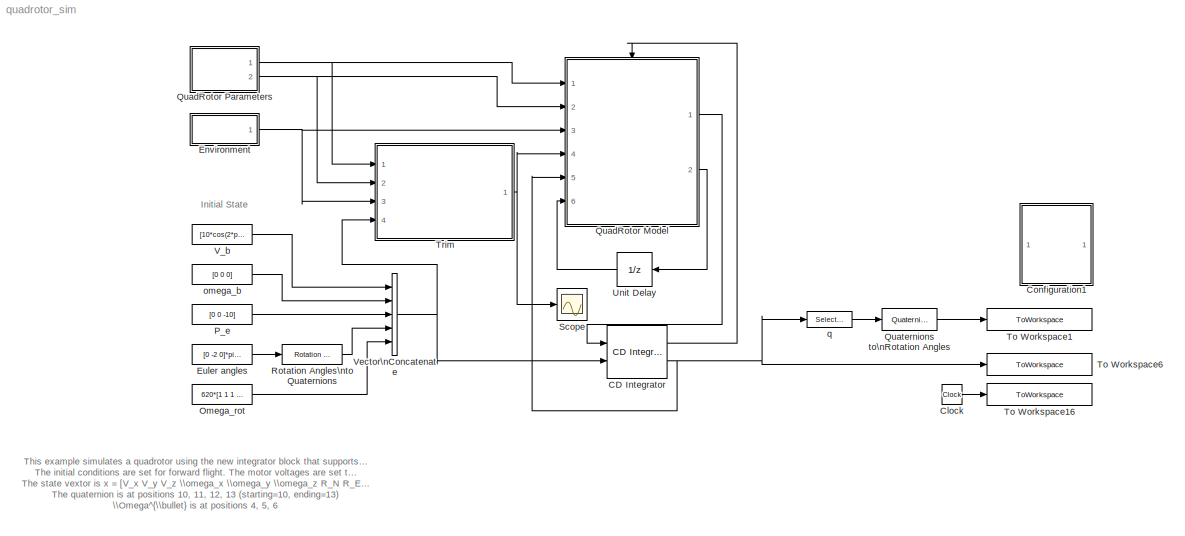
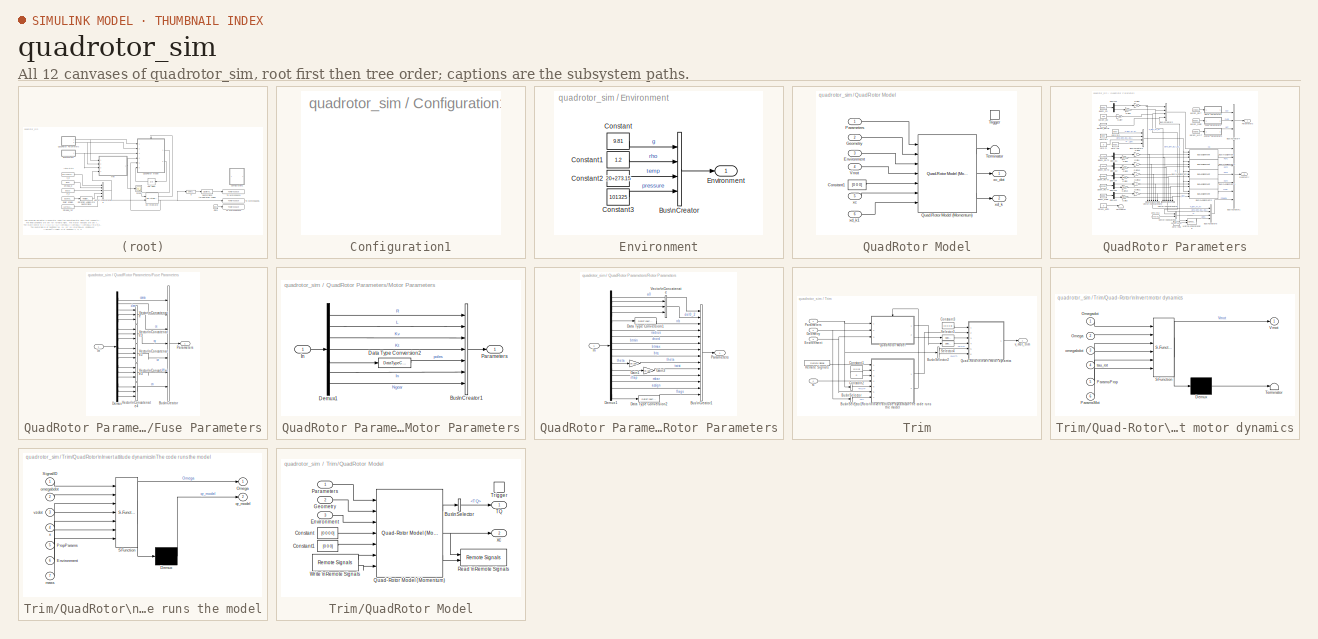
[diagram: thumbnail index - all 12 canvases of the model, root first then tree order]
MODEL quadrotor_sim
KIND model
BLOCK [Reference] CD Integrator  REF=UAVdesign_net/Utilities/Continuous/CD Integrator
  Ports = [2, 2]
  SID = 20
  SourceBlock = UAVdesign_net/Utilities/Continuous/CD Integrator
  SourceType = CD_Integrator
  algorithm = Runge-Kutta
  final_time = 10
  initial_time = 0
  limit_output = off
  lower_sat = -inf
  omega_dot_index = [4 6]
  output_time = off
  param_source = Discrete steps of the model
  q_index = [10 13]
  reset_type = None
  sample_time = -1
  upper_sat = inf
  x0 = 0
  x0_source = External
BLOCK [Clock] Clock
  Decimation = 1
  SID = 33
BLOCK [SubSystem] Configuration1
  FunctionWithSeparateData = off
  MaskDisplay = disp('Double-click\\nto display\\nthe\\ngraphs')
  MaskHideContents = off
  MaskIconFrame = on
  MaskIconOpaque = on
  MaskIconRotate = none
  MaskIconUnits = autoscale
  MaskPortRotate = default
  MinAlgLoopOccurrences = off
  Opaque = off
  OpenFcn = graphs_quadrotor_sim;
  Ports = []
  PropExecContextOutsideSubsystem = off
  RTWSystemCode = Auto
  RequestExecContextInheritance = off
  SID = 31
BLOCK [SubSystem] Environment
  FunctionWithSeparateData = off
  InitFcn = bus_Environment;
  MaskHideContents = off
  MinAlgLoopOccurrences = off
  Opaque = off
  Ports = [0, 1]
  PropExecContextOutsideSubsystem = off
  RTWSystemCode = Auto
  RequestExecContextInheritance = off
  SID = 23
BLOCK [BusCreator] Environment/Bus\nCreator
  DisplayOption = bar
  NonVirtualBus = on
  Ports = [4, 1]
  SID = 24
BLOCK [Constant] Environment/Constant
  SID = 25
  Value = 9.81
BLOCK [Constant] Environment/Constant1
  SID = 26
  Value = 1.2
BLOCK [Constant] Environment/Constant2
  SID = 27
  Value = 20+273.15
BLOCK [Constant] Environment/Constant3
  SID = 28
  Value = 101325
BLOCK [Outport] Environment/Environment
  IconDisplay = Port number
  SID = 29
BLOCK [Constant] Euler angles
  SID = 90
  Value = [0 -2 0]*pi/180
BLOCK [Constant] Omega_rot
  SID = 89
  Value = 620*[1 1 1 1]
BLOCK [Constant] P_e
  SID = 88
  Value = [0 0 -10]
BLOCK [SubSystem] QuadRotor Model
  FunctionWithSeparateData = off
  MaskHideContents = off
  MinAlgLoopOccurrences = off
  Opaque = off
  Ports = [6, 2, 0, 1]
  PropExecContextOutsideSubsystem = off
  RTWSystemCode = Auto
  RequestExecContextInheritance = off
  SID = 1
BLOCK [Constant] QuadRotor Model/Constant1
  SID = 13
  Value = [0 0 0]
BLOCK [Inport] QuadRotor Model/Environment
  IconDisplay = Port number
  Port = 3
  SID = 4
BLOCK [Inport] QuadRotor Model/Geometry
  IconDisplay = Port number
  Port = 2
  SID = 3
BLOCK [Inport] QuadRotor Model/Parameters
  IconDisplay = Port number
  SID = 2
BLOCK [Reference] QuadRotor Model/Quad-Rotor Model (Momentum)  REF=UAVdesign_net/Vehicle Models/Quad-Rotor Model (Momentum)
  FunctionWithSeparateData = off
  GeneratePreprocessorConditionals = off
  Ports = [7, 3]
  RTWMemSecDataConstants = Inherit from model
  RTWMemSecDataInternal = Inherit from model
  RTWMemSecDataParameters = Inherit from model
  RTWMemSecFuncExecute = Inherit from model
  RTWMemSecFuncInitTerm = Inherit from model
  SID = 15
  ShowPortLabels = FromPortIcon
  SourceBlock = UAVdesign_net/Vehicle Models/Quad-Rotor Model (Momentum)
  SourceType = HelicopterModel
  SystemSampleTime = -1
BLOCK [Terminator] QuadRotor Model/Terminator
  SID = 16
BLOCK [TriggerPort] QuadRotor Model/Trigger
  Ports = []
  SID = 8
  StatesWhenEnabling = held
  TriggerType = function-call
BLOCK [Inport] QuadRotor Model/Vmot
  IconDisplay = Port number
  Port = 4
  SID = 5
BLOCK [Inport] QuadRotor Model/xc
  IconDisplay = Port number
  Port = 5
  SID = 6
BLOCK [Outport] QuadRotor Model/xc_dot
  IconDisplay = Port number
  SID = 17
BLOCK [Outport] QuadRotor Model/xd_k
  IconDisplay = Port number
  Port = 2
  SID = 18
BLOCK [Inport] QuadRotor Model/xd_k1
  IconDisplay = Port number
  Port = 6
  SID = 7
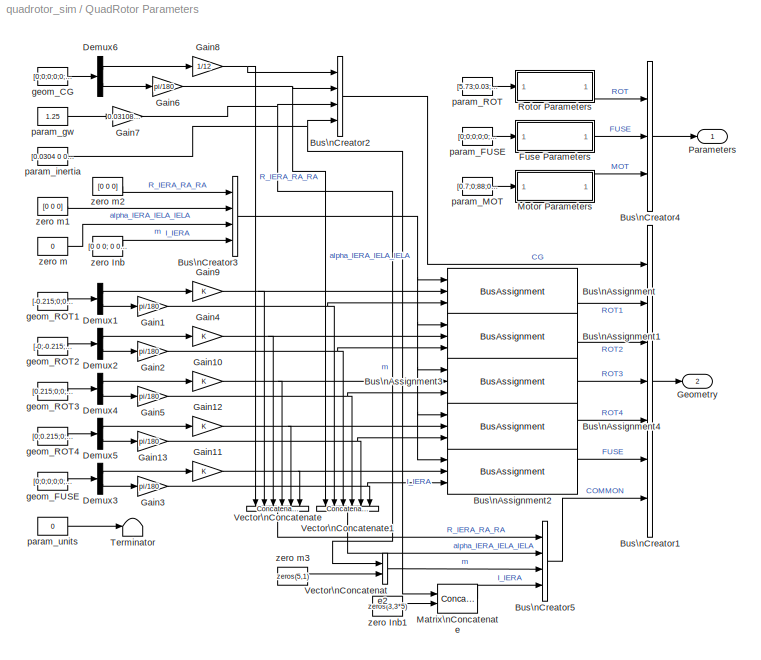
BLOCK [SubSystem] QuadRotor Parameters
  FunctionWithSeparateData = off
  InitFcn = bus_PropellerParameters;    \nbus_ElectricMotorParameters;\nbus_GeometryParameters;     \nbus_FuselageParameters;
  MaskDescription = Parameters for a helicopter.\nGeometry, rotors, fuselage, fins.
  MaskDisplay = port_label('output', 1, 'Parameters')\nport_label('output', 2, 'Geometry')
  MaskHideContents = off
  MaskIconFrame = on
  MaskIconOpaque = on
  MaskIconRotate = none
  MaskIconUnits = autoscale
  MaskInitialization = set_param(gcb, 'LinkStatus', 'none');
  MaskPortRotate = default
  MaskSelfModifiable = on
  MaskType = HelicopterParameters
  MinAlgLoopOccurrences = off
  Opaque = off
  OpenFcn = gui_QuadRotorParameters( 'Block', [get_param(gcb, 'Parent') '/' get_param(gcb, 'Name')]);
  Ports = [0, 2]
  PropExecContextOutsideSubsystem = off
  RTWSystemCode = Auto
  RequestExecContextInheritance = off
  SID = 22
BLOCK [BusAssignment] QuadRotor Parameters/Bus\nAssignment
  AssignedSignals = R_IERA_RA_RA,alpha_IERA_IELA_IELA
  Ports = [3, 1]
  SID = 22:400
BLOCK [BusAssignment] QuadRotor Parameters/Bus\nAssignment1
  AssignedSignals = R_IERA_RA_RA,alpha_IERA_IELA_IELA
  Ports = [3, 1]
  SID = 22:401
BLOCK [BusAssignment] QuadRotor Parameters/Bus\nAssignment2
  AssignedSignals = R_IERA_RA_RA,alpha_IERA_IELA_IELA
  Ports = [3, 1]
  SID = 22:402
BLOCK [BusAssignment] QuadRotor Parameters/Bus\nAssignment3
  AssignedSignals = R_IERA_RA_RA,alpha_IERA_IELA_IELA
  Ports = [3, 1]
  SID = 22:403
BLOCK [BusAssignment] QuadRotor Parameters/Bus\nAssignment4
  AssignedSignals = R_IERA_RA_RA,alpha_IERA_IELA_IELA
  Ports = [3, 1]
  SID = 22:404
BLOCK [BusCreator] QuadRotor Parameters/Bus\nCreator1
  DisplayOption = bar
  Inputs = 7
  Ports = [7, 1]
  SID = 22:405
BLOCK [BusCreator] QuadRotor Parameters/Bus\nCreator2
  DisplayOption = bar
  Ports = [4, 1]
  SID = 22:406
BLOCK [BusCreator] QuadRotor Parameters/Bus\nCreator3
  DisplayOption = bar
  Ports = [4, 1]
  SID = 22:407
BLOCK [BusCreator] QuadRotor Parameters/Bus\nCreator4
  DisplayOption = bar
  Inputs = 3
  Ports = [3, 1]
  SID = 22:408
BLOCK [BusCreator] QuadRotor Parameters/Bus\nCreator5
  DisplayOption = bar
  Ports = [4, 1]
  SID = 22:409
BLOCK [Demux] QuadRotor Parameters/Demux1
  DisplayOption = bar
  Outputs = 2
  Ports = [1, 2]
  SID = 22:410
BLOCK [Demux] QuadRotor Parameters/Demux2
  DisplayOption = bar
  Outputs = 2
  Ports = [1, 2]
  SID = 22:411
BLOCK [Demux] QuadRotor Parameters/Demux3
  DisplayOption = bar
  Outputs = 2
  Ports = [1, 2]
  SID = 22:412
BLOCK [Demux] QuadRotor Parameters/Demux4
  DisplayOption = bar
  Outputs = 2
  Ports = [1, 2]
  SID = 22:413
BLOCK [Demux] QuadRotor Parameters/Demux5
  DisplayOption = bar
  Outputs = 2
  Ports = [1, 2]
  SID = 22:414
BLOCK [Demux] QuadRotor Parameters/Demux6
  DisplayOption = bar
  Outputs = 2
  Ports = [1, 2]
  SID = 22:415
BLOCK [SubSystem] QuadRotor Parameters/Fuse Parameters
  FunctionWithSeparateData = off
  MaskHideContents = off
  MinAlgLoopOccurrences = off
  Opaque = off
  Ports = [1, 1]
  PropExecContextOutsideSubsystem = off
  RTWSystemCode = Auto
  RequestExecContextInheritance = off
  SID = 22:416
BLOCK [BusCreator] QuadRotor Parameters/Fuse Parameters/Bus\nCreator
  DisplayOption = bar
  Inputs = 7
  NonVirtualBus = on
  OutDataTypeStr = Bus: FuselageParameters
  Ports = [7, 1]
  SID = 22:418
BLOCK [Demux] QuadRotor Parameters/Fuse Parameters/Demux
  DisplayOption = bar
  Outputs = 17
  Ports = [1, 17]
  SID = 22:419
BLOCK [Inport] QuadRotor Parameters/Fuse Parameters/In
  IconDisplay = Port number
  SID = 22:417
BLOCK [Outport] QuadRotor Parameters/Fuse Parameters/Parameters
  IconDisplay = Port number
  OutDataTypeStr = Bus: FuselageParameters
  SID = 22:425
BLOCK [Concatenate] QuadRotor Parameters/Fuse Parameters/Vector\nConcatenate
  Mode = Vector
  NumInputs = 3
  Ports = [3, 1]
  SID = 22:420
BLOCK [Concatenate] QuadRotor Parameters/Fuse Parameters/Vector\nConcatenate1
  Mode = Vector
  NumInputs = 3
  Ports = [3, 1]
  SID = 22:421
BLOCK [Concatenate] QuadRotor Parameters/Fuse Parameters/Vector\nConcatenate2
  Mode = Vector
  NumInputs = 3
  Ports = [3, 1]
  SID = 22:422
BLOCK [Concatenate] QuadRotor Parameters/Fuse Parameters/Vector\nConcatenate3
  Mode = Vector
  NumInputs = 3
  Ports = [3, 1]
  SID = 22:423
BLOCK [Concatenate] QuadRotor Parameters/Fuse Parameters/Vector\nConcatenate4
  Mode = Vector
  NumInputs = 3
  Ports = [3, 1]
  SID = 22:424
BLOCK [Gain] QuadRotor Parameters/Gain1
  Gain = pi/180
  OutDataTypeStr = Inherit: Inherit via internal rule
  ParamDataTypeStr = Inherit: Inherit via internal rule
  SID = 22:426
  SaturateOnIntegerOverflow = off
BLOCK [Gain] QuadRotor Parameters/Gain10
  OutDataTypeStr = Inherit: Inherit via internal rule
  ParamDataTypeStr = Inherit: Inherit via internal rule
  SID = 22:427
  SaturateOnIntegerOverflow = off
BLOCK [Gain] QuadRotor Parameters/Gain11
  OutDataTypeStr = Inherit: Inherit via internal rule
  ParamDataTypeStr = Inherit: Inherit via internal rule
  SID = 22:428
  SaturateOnIntegerOverflow = off
BLOCK [Gain] QuadRotor Parameters/Gain12
  OutDataTypeStr = Inherit: Inherit via internal rule
  ParamDataTypeStr = Inherit: Inherit via internal rule
  SID = 22:429
  SaturateOnIntegerOverflow = off
BLOCK [Gain] QuadRotor Parameters/Gain13
  Gain = pi/180
  OutDataTypeStr = Inherit: Inherit via internal rule
  ParamDataTypeStr = Inherit: Inherit via internal rule
  SID = 22:430
  SaturateOnIntegerOverflow = off
BLOCK [Gain] QuadRotor Parameters/Gain2
  Gain = pi/180
  OutDataTypeStr = Inherit: Inherit via internal rule
  ParamDataTypeStr = Inherit: Inherit via internal rule
  SID = 22:431
  SaturateOnIntegerOverflow = off
BLOCK [Gain] QuadRotor Parameters/Gain3
  Gain = pi/180
  OutDataTypeStr = Inherit: Inherit via internal rule
  ParamDataTypeStr = Inherit: Inherit via internal rule
  SID = 22:432
  SaturateOnIntegerOverflow = off
BLOCK [Gain] QuadRotor Parameters/Gain4
  OutDataTypeStr = Inherit: Inherit via internal rule
  ParamDataTypeStr = Inherit: Inherit via internal rule
  SID = 22:433
  SaturateOnIntegerOverflow = off
BLOCK [Gain] QuadRotor Parameters/Gain5
  Gain = pi/180
  OutDataTypeStr = Inherit: Inherit via internal rule
  ParamDataTypeStr = Inherit: Inherit via internal rule
  SID = 22:434
  SaturateOnIntegerOverflow = off
BLOCK [Gain] QuadRotor Parameters/Gain6
  Gain = pi/180
  OutDataTypeStr = Inherit: Inherit via internal rule
  ParamDataTypeStr = Inherit: Inherit via internal rule
  SID = 22:435
  SaturateOnIntegerOverflow = off
BLOCK [Gain] QuadRotor Parameters/Gain7
  Gain = 0.0310809502 *0 + 1
  OutDataTypeStr = Inherit: Inherit via internal rule
  ParamDataTypeStr = Inherit: Inherit via internal rule
  SID = 22:436
  SaturateOnIntegerOverflow = off
BLOCK [Gain] QuadRotor Parameters/Gain8
  Gain = 1/12
  OutDataTypeStr = Inherit: Inherit via internal rule
  ParamDataTypeStr = Inherit: Inherit via internal rule
  SID = 22:437
  SaturateOnIntegerOverflow = off
BLOCK [Gain] QuadRotor Parameters/Gain9
  OutDataTypeStr = Inherit: Inherit via internal rule
  ParamDataTypeStr = Inherit: Inherit via internal rule
  SID = 22:438
  SaturateOnIntegerOverflow = off
BLOCK [Outport] QuadRotor Parameters/Geometry
  IconDisplay = Port number
  Port = 2
  SID = 22:479
BLOCK [Concatenate] QuadRotor Parameters/Matrix\nConcatenate
  ConcatenateDimension = 2
  Mode = Multidimensional array
  Ports = [2, 1]
  SID = 22:439
BLOCK [SubSystem] QuadRotor Parameters/Motor Parameters
  FunctionWithSeparateData = off
  MaskHideContents = off
  MinAlgLoopOccurrences = off
  Opaque = off
  Ports = [1, 1]
  PropExecContextOutsideSubsystem = off
  RTWSystemCode = Auto
  RequestExecContextInheritance = off
  SID = 22:440
BLOCK [BusCreator] QuadRotor Parameters/Motor Parameters/Bus\nCreator1
  DisplayOption = bar
  Inputs = 7
  NonVirtualBus = on
  Ports = [7, 1]
  SID = 22:442
BLOCK [DataTypeConversion] QuadRotor Parameters/Motor Parameters/Data Type Conversion2
  OutDataTypeStr = uint32
  RndMeth = Nearest
  SID = 22:443
  SaturateOnIntegerOverflow = off
BLOCK [Demux] QuadRotor Parameters/Motor Parameters/Demux1
  DisplayOption = bar
  Outputs = 7
  Ports = [1, 7]
  SID = 22:444
BLOCK [Inport] QuadRotor Parameters/Motor Parameters/In
  IconDisplay = Port number
  SID = 22:441
BLOCK [Outport] QuadRotor Parameters/Motor Parameters/Parameters
  IconDisplay = Port number
  SID = 22:445
BLOCK [Outport] QuadRotor Parameters/Parameters
  IconDisplay = Port number
  SID = 22:478
BLOCK [SubSystem] QuadRotor Parameters/Rotor Parameters
  FunctionWithSeparateData = off
  MaskHideContents = off
  MinAlgLoopOccurrences = off
  Opaque = off
  Ports = [1, 1]
  PropExecContextOutsideSubsystem = off
  RTWSystemCode = Auto
  RequestExecContextInheritance = off
  SID = 22:446
BLOCK [BusCreator] QuadRotor Parameters/Rotor Parameters/Bus\nCreator1
  DisplayOption = bar
  Inputs = 14
  NonVirtualBus = on
  Ports = [14, 1]
  SID = 22:448
BLOCK [DataTypeConversion] QuadRotor Parameters/Rotor Parameters/Data Type Conversion1
  OutDataTypeStr = uint32
  RndMeth = Nearest
  SID = 22:449
  SaturateOnIntegerOverflow = off
BLOCK [DataTypeConversion] QuadRotor Parameters/Rotor Parameters/Data Type Conversion2
  OutDataTypeStr = uint32
  RndMeth = Nearest
  SID = 22:450
  SaturateOnIntegerOverflow = off
BLOCK [Demux] QuadRotor Parameters/Rotor Parameters/Demux1
  DisplayOption = bar
  Outputs = 16
  Ports = [1, 16]
  SID = 22:451
BLOCK [Gain] QuadRotor Parameters/Rotor Parameters/Gain1
  Gain = pi/180
  OutDataTypeStr = Inherit: Inherit via internal rule
  ParamDataTypeStr = Inherit: Inherit via internal rule
  SID = 22:452
  SaturateOnIntegerOverflow = off
BLOCK [Gain] QuadRotor Parameters/Rotor Parameters/Gain3
  Gain = pi/180
  OutDataTypeStr = Inherit: Inherit via internal rule
  ParamDataTypeStr = Inherit: Inherit via internal rule
  SID = 22:453
  SaturateOnIntegerOverflow = off
BLOCK [Inport] QuadRotor Parameters/Rotor Parameters/In
  IconDisplay = Port number
  SID = 22:447
BLOCK [Outport] QuadRotor Parameters/Rotor Parameters/Parameters
  IconDisplay = Port number
  SID = 22:455
BLOCK [Concatenate] QuadRotor Parameters/Rotor Parameters/Vector\nConcatenate
  Mode = Vector
  NumInputs = 3
  Ports = [3, 1]
  SID = 22:454
BLOCK [Terminator] QuadRotor Parameters/Terminator
  SID = 22:456
BLOCK [Concatenate] QuadRotor Parameters/Vector\nConcatenate
  Mode = Vector
  NumInputs = 6
  Ports = [6, 1]
  SID = 22:457
BLOCK [Concatenate] QuadRotor Parameters/Vector\nConcatenate1
  Mode = Vector
  NumInputs = 6
  Ports = [6, 1]
  SID = 22:458
BLOCK [Concatenate] QuadRotor Parameters/Vector\nConcatenate2
  Mode = Vector
  Ports = [2, 1]
  SID = 22:459
BLOCK [Constant] QuadRotor Parameters/geom_CG
  SID = 22:460
  Value = [0;0;0;0;0;0]
BLOCK [Constant] QuadRotor Parameters/geom_FUSE
  SID = 22:461
  Value = [0;0;0;0;0;0]
BLOCK [Constant] QuadRotor Parameters/geom_ROT1
  SID = 22:462
  Value = [-0.215;0;0;0;0;0]
BLOCK [Constant] QuadRotor Parameters/geom_ROT2
  SID = 22:463
  Value = [-0;-0.215;0;0;0;0]
BLOCK [Constant] QuadRotor Parameters/geom_ROT3
  SID = 22:464
  Value = [0.215;0;0;0;0;0]
BLOCK [Constant] QuadRotor Parameters/geom_ROT4
  SID = 22:465
  Value = [0;0.215;0;0;0;0]
BLOCK [Constant] QuadRotor Parameters/param_FUSE
  SID = 22:466
  Value = [0;0;0;0;0;0;0;0;0;0;0;0;0;0;0;0;0]
BLOCK [Constant] QuadRotor Parameters/param_MOT
  SID = 22:467
  Value = [0.7;0;88;0.0114;7;0.01;1]
BLOCK [Constant] QuadRotor Parameters/param_ROT
  SID = 22:468
  Value = [5.73;0.03;0;0;2;0.127;0.016;0.95;1;1;30;-24;0;0.014;1;0]
BLOCK [Constant] QuadRotor Parameters/param_gw
  SID = 22:469
  Value = 1.25
BLOCK [Constant] QuadRotor Parameters/param_inertia
  SID = 22:470
  Value = [0.0304 0 0;0 0.0304 0;0 0 0.0344]
BLOCK [Constant] QuadRotor Parameters/param_units
  SID = 22:471
  Value = 0
BLOCK [Constant] QuadRotor Parameters/zero Inb
  SID = 22:472
  Value = [0 0 0; 0 0 0; 0 0 0]
BLOCK [Constant] QuadRotor Parameters/zero Inb1
  SID = 22:473
  Value = zeros(3,3*5)
BLOCK [Constant] QuadRotor Parameters/zero m
  SID = 22:474
  Value = 0
BLOCK [Constant] QuadRotor Parameters/zero m1
  SID = 22:475
  Value = [0 0 0]
BLOCK [Constant] QuadRotor Parameters/zero m2
  SID = 22:476
  Value = [0 0 0]
BLOCK [Constant] QuadRotor Parameters/zero m3
  SID = 22:477
  Value = zeros(5,1)
BLOCK [Reference] Quaternions to\nRotation Angles  REF=UAVdesign_net/Utilities/Axes/Quaternions to\nRotation Angles
  FunctionWithSeparateData = off
  GeneratePreprocessorConditionals = off
  Ports = [1, 1]
  RTWMemSecDataConstants = Inherit from model
  RTWMemSecDataInternal = Inherit from model
  RTWMemSecDataParameters = Inherit from model
  RTWMemSecFuncExecute = Inherit from model
  RTWMemSecFuncInitTerm = Inherit from model
  SID = 35
  ShowPortLabels = FromPortIcon
  SourceBlock = UAVdesign_net/Utilities/Axes/Quaternions to\nRotation Angles
  SourceType = Quat2Ang
  SystemSampleTime = -1
BLOCK [Reference] Rotation Angles\nto Quaternions  REF=UAVdesign_net/Utilities/Axes/Rotation Angles\nto Quaternions
  FunctionWithSeparateData = off
  GeneratePreprocessorConditionals = off
  Ports = [1, 1]
  RTWMemSecDataConstants = Inherit from model
  RTWMemSecDataInternal = Inherit from model
  RTWMemSecDataParameters = Inherit from model
  RTWMemSecFuncExecute = Inherit from model
  RTWMemSecFuncInitTerm = Inherit from model
  SID = 91
  ShowPortLabels = FromPortIcon
  SourceBlock = UAVdesign_net/Utilities/Axes/Rotation Angles\nto Quaternions
  SourceType = Ang2Quat
  SystemSampleTime = -1
BLOCK [Scope] Scope
  DataFormat = StructureWithTime
  Floating = off
  NumInputPorts = 1
  Ports = [1]
  SID = 93
  SampleTime = 0
  YMax = 7.415
  YMin = 7.37
BLOCK [ToWorkspace] To Workspace1
  MaxDataPoints = inf
  Ports = [1]
  SID = 37
  SampleTime = -1
  SaveFormat = Array
  VariableName = out_attitude
BLOCK [ToWorkspace] To Workspace16
  MaxDataPoints = inf
  Ports = [1]
  SID = 34
  SampleTime = -1
  SaveFormat = Array
  VariableName = out_time
BLOCK [ToWorkspace] To Workspace6
  MaxDataPoints = inf
  Ports = [1]
  SID = 32
  SampleTime = -1
  SaveFormat = Array
  VariableName = out_xc
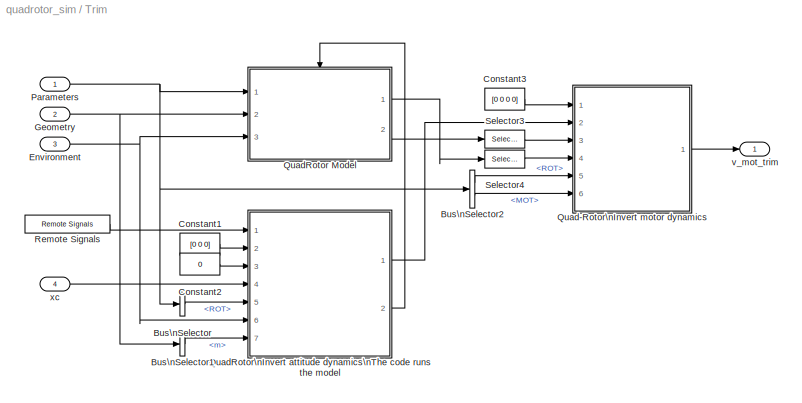
BLOCK [SubSystem] Trim
  FunctionWithSeparateData = off
  MaskHideContents = off
  MinAlgLoopOccurrences = off
  Opaque = off
  Ports = [4, 1]
  PropExecContextOutsideSubsystem = off
  RTWSystemCode = Auto
  RequestExecContextInheritance = off
  SID = 38
BLOCK [BusSelector] Trim/Bus\nSelector
  OutputSignals = ROT
  Ports = [1, 1]
  SID = 72
BLOCK [BusSelector] Trim/Bus\nSelector1
  OutputSignals = CG.m
  Ports = [1, 1]
  SID = 73
BLOCK [BusSelector] Trim/Bus\nSelector2
  OutputSignals = ROT,MOT
  Ports = [1, 2]
  SID = 76
BLOCK [Constant] Trim/Constant1
  SID = 74
  Value = [0 0 0]
BLOCK [Constant] Trim/Constant2
  SID = 75
  Value = 0
BLOCK [Constant] Trim/Constant3
  SID = 81
  Value = [0 0 0 0]
BLOCK [Inport] Trim/Environment
  IconDisplay = Port number
  Port = 3
  SID = 43
BLOCK [Inport] Trim/Geometry
  IconDisplay = Port number
  Port = 2
  SID = 42
BLOCK [Inport] Trim/Parameters
  IconDisplay = Port number
  SID = 41
BLOCK [SubSystem] Trim/Quad-Rotor\nInvert motor dynamics
  ErrorFcn = Stateflow.Translate.translate
  FunctionWithSeparateData = off
  MaskDescription = Embedded MATLAB block
  MaskDisplay = bgColor = Simulink.Root.ColorString2Rgb(get_param(gcbh, 'BackgroundColor')); image(imread('private/eml_membrane_16.png','png','BackgroundColor',bgColor(1:3)),'center'); disp([10 10 'qrinv_mot']);
  MaskHideContents = off
  MaskIconFrame = on
  MaskIconOpaque = off
  MaskIconRotate = none
  MaskIconUnits = normalized
  MaskPortRotate = default
  MaskSelfModifiable = on
  MaskType = Stateflow
  MinAlgLoopOccurrences = off
  Opaque = off
  PermitHierarchicalResolution = ExplicitOnly
  Ports = [6, 1]
  PropExecContextOutsideSubsystem = off
  RTWSystemCode = Auto
  RequestExecContextInheritance = off
  SID = 77
  TreatAsAtomicUnit = on
BLOCK [Demux] Trim/Quad-Rotor\nInvert motor dynamics/ Demux 
  Outputs = 1
  Ports = [1, 1]
  SID = 77::1028
BLOCK [S-Function] Trim/Quad-Rotor\nInvert motor dynamics/ SFunction 
  EnableBusSupport = on
  FunctionName = sf_sfun
  PortCounts = [6 2]
  Ports = [6, 2]
  SID = 77::1027
  Tag = Stateflow S-Function quadrotor_sim 8
BLOCK [Terminator] Trim/Quad-Rotor\nInvert motor dynamics/ Terminator 
  SID = 77::1030
BLOCK [Inport] Trim/Quad-Rotor\nInvert motor dynamics/Omega
  IconDisplay = Port number
  Port = 2
  SID = 77::2
BLOCK [Inport] Trim/Quad-Rotor\nInvert motor dynamics/Omegadot
  IconDisplay = Port number
  SID = 77::1
BLOCK [Inport] Trim/Quad-Rotor\nInvert motor dynamics/ParamsMot
  IconDisplay = Port number
  Port = 6
  SID = 77::6
BLOCK [Inport] Trim/Quad-Rotor\nInvert motor dynamics/ParamsProp
  IconDisplay = Port number
  Port = 5
  SID = 77::5
BLOCK [Outport] Trim/Quad-Rotor\nInvert motor dynamics/Vmot
  IconDisplay = Port number
  SID = 77::10
BLOCK [Inport] Trim/Quad-Rotor\nInvert motor dynamics/omegabdot
  IconDisplay = Port number
  Port = 3
  SID = 77::3
BLOCK [Inport] Trim/Quad-Rotor\nInvert motor dynamics/tau_rot
  IconDisplay = Port number
  Port = 4
  SID = 77::4
BLOCK [SubSystem] Trim/QuadRotor Model
  FunctionWithSeparateData = off
  MaskHideContents = off
  MinAlgLoopOccurrences = off
  Opaque = off
  Ports = [3, 2, 0, 1]
  PropExecContextOutsideSubsystem = off
  RTWSystemCode = Auto
  RequestExecContextInheritance = off
  SID = 60
BLOCK [BusSelector] Trim/QuadRotor Model/Bus\nSelector
  OutputSignals = TQ
  Ports = [1, 1]
  SID = 83
BLOCK [Constant] Trim/QuadRotor Model/Constant
  SID = 65
  Value = [0 0 0 0]
BLOCK [Constant] Trim/QuadRotor Model/Constant1
  SID = 66
  Value = [0 0 0]
BLOCK [Inport] Trim/QuadRotor Model/Environment
  IconDisplay = Port number
  Port = 3
  SID = 63
BLOCK [Inport] Trim/QuadRotor Model/Geometry
  IconDisplay = Port number
  Port = 2
  SID = 62
BLOCK [Inport] Trim/QuadRotor Model/Parameters
  IconDisplay = Port number
  SID = 61
BLOCK [Reference] Trim/QuadRotor Model/Quad-Rotor Model (Momentum)  REF=UAVdesign_net/Vehicle Models/Quad-Rotor Model (Momentum)
  FunctionWithSeparateData = off
  GeneratePreprocessorConditionals = off
  Ports = [7, 3]
  RTWMemSecDataConstants = Inherit from model
  RTWMemSecDataInternal = Inherit from model
  RTWMemSecDataParameters = Inherit from model
  RTWMemSecFuncExecute = Inherit from model
  RTWMemSecFuncInitTerm = Inherit from model
  SID = 67
  ShowPortLabels = FromPortIcon
  SourceBlock = UAVdesign_net/Vehicle Models/Quad-Rotor Model (Momentum)
  SourceType = HelicopterModel
  SystemSampleTime = -1
BLOCK [Reference] Trim/QuadRotor Model/Read \nRemote Signals  REF=UAVdesign_net/Utilities/Continuous/Remote Signals
  Ports = [2]
  SID = 68
  SourceBlock = UAVdesign_net/Utilities/Continuous/Remote Signals
  SourceType = CD_RemoteSignals
  block_name = 'InvFM_Omega'
  op_mode = Read the output
  port_vector = [17 5*4+3]
  sample_time = -1
BLOCK [Outport] Trim/QuadRotor Model/TQ
  IconDisplay = Port number
  SID = 82
BLOCK [TriggerPort] Trim/QuadRotor Model/Trigger
  Ports = []
  SID = 64
  StatesWhenEnabling = held
  TriggerType = function-call
BLOCK [Reference] Trim/QuadRotor Model/Write \nRemote Signals  REF=UAVdesign_net/Utilities/Continuous/Remote Signals
  Ports = [0, 2]
  SID = 70
  SourceBlock = UAVdesign_net/Utilities/Continuous/Remote Signals
  SourceType = CD_RemoteSignals
  block_name = 'InvFM_Omega'
  op_mode = Write the input
  port_vector = [17 5*4+3]
  sample_time = -1
BLOCK [Outport] Trim/QuadRotor Model/xc
  IconDisplay = Port number
  Port = 2
  SID = 84
BLOCK [SubSystem] Trim/QuadRotor\nInvert attitude dynamics\nThe code runs the model
  ErrorFcn = Stateflow.Translate.translate
  FunctionWithSeparateData = off
  MaskDescription = Embedded MATLAB block
  MaskDisplay = bgColor = Simulink.Root.ColorString2Rgb(get_param(gcbh, 'BackgroundColor')); image(imread('private/eml_membrane_16.png','png','BackgroundColor',bgColor(1:3)),'center'); disp([10 10 'qinv_att']);
  MaskHideContents = off
  MaskIconFrame = on
  MaskIconOpaque = off
  MaskIconRotate = none
  MaskIconUnits = normalized
  MaskPortRotate = default
  MaskSelfModifiable = on
  MaskType = Stateflow
  MinAlgLoopOccurrences = off
  Opaque = off
  PermitHierarchicalResolution = ExplicitOnly
  Ports = [7, 2]
  PropExecContextOutsideSubsystem = off
  RTWSystemCode = Auto
  RequestExecContextInheritance = off
  SID = 71
  TreatAsAtomicUnit = on
BLOCK [Demux] Trim/QuadRotor\nInvert attitude dynamics\nThe code runs the model/ Demux 
  Outputs = 1
  Ports = [1, 1]
  SID = 71::1029
BLOCK [S-Function] Trim/QuadRotor\nInvert attitude dynamics\nThe code runs the model/ SFunction 
  EnableBusSupport = on
  FunctionName = sf_sfun
  PortCounts = [7 2]
  Ports = [7, 2]
  SID = 71::1028
  Tag = Stateflow S-Function quadrotor_sim 4
BLOCK [Inport] Trim/QuadRotor\nInvert attitude dynamics\nThe code runs the model/Environment
  IconDisplay = Port number
  Port = 6
  SID = 71::6
BLOCK [Outport] Trim/QuadRotor\nInvert attitude dynamics\nThe code runs the model/Omega
  IconDisplay = Port number
  SID = 71::10
BLOCK [Inport] Trim/QuadRotor\nInvert attitude dynamics\nThe code runs the model/PropParams
  IconDisplay = Port number
  Port = 5
  SID = 71::5
BLOCK [Inport] Trim/QuadRotor\nInvert attitude dynamics\nThe code runs the model/SignalID
  IconDisplay = Port number
  SID = 71::1
BLOCK [Inport] Trim/QuadRotor\nInvert attitude dynamics\nThe code runs the model/mass
  IconDisplay = Port number
  Port = 7
  SID = 71::7
BLOCK [Inport] Trim/QuadRotor\nInvert attitude dynamics\nThe code runs the model/omegabdot
  IconDisplay = Port number
  Port = 2
  SID = 71::2
BLOCK [Outport] Trim/QuadRotor\nInvert attitude dynamics\nThe code runs the model/qr_model
  IconDisplay = Port number
  Port = 2
  SID = 71::11
BLOCK [Inport] Trim/QuadRotor\nInvert attitude dynamics\nThe code runs the model/vzdot
  IconDisplay = Port number
  Port = 3
  SID = 71::3
BLOCK [Inport] Trim/QuadRotor\nInvert attitude dynamics\nThe code runs the model/x
  IconDisplay = Port number
  Port = 4
  SID = 71::4
BLOCK [Reference] Trim/Remote Signals  REF=UAVdesign_net/Utilities/Continuous/Remote Signals
  Ports = [0, 1]
  SID = 55
  SourceBlock = UAVdesign_net/Utilities/Continuous/Remote Signals
  SourceType = CD_RemoteSignals
  block_name = 'InvFM_Omega'
  op_mode = Generate the signals ID
  port_vector = [17 5*4+3]
  sample_time = -1
BLOCK [Selector] Trim/Selector3
  IndexOptions = Index vector (dialog)
  Indices = [4:6]
  InputPortWidth = 17
  OutputSizes = 1
  Ports = [1, 1]
  SID = 79
BLOCK [Selector] Trim/Selector4
  IndexOptions = Index vector (dialog)
  Indices = [2 4 6 8]
  InputPortWidth = 8
  OutputSizes = 1
  Ports = [1, 1]
  SID = 80
BLOCK [Outport] Trim/v_mot_trim
  IconDisplay = Port number
  SID = 59
BLOCK [Inport] Trim/xc
  IconDisplay = Port number
  Port = 4
  SID = 58
BLOCK [UnitDelay] Unit Delay
  SID = 19
  SampleTime = -1
  X0 = [zeros(12,1); 1;1;1;1; zeros(7,1)]
BLOCK [Constant] V_b
  SID = 86
  Value = [10*cos(2*pi/180) 10*sin(2*pi/180) 0]
BLOCK [Concatenate] Vector\nConcatenate
  Mode = Vector
  NumInputs = 5
  Ports = [5, 1]
  SID = 92
BLOCK [Constant] omega_b
  SID = 87
  Value = [0 0 0]
BLOCK [Selector] q
  IndexOptions = Index vector (dialog)
  Indices = [10:13]
  InputPortWidth = 17
  OutputSizes = 1
  Ports = [1, 1]
  SID = 36
ANNOTATION (root): Initial State
ANNOTATION (root): This example simulates a quadrotor using the new integrator block that supports quaternions. It also shows how to run a model from Embedded Matlab code.\nThe initial conditions are set for forward flight. The motor voltages are set to a trim level and kept constant. The system does not have a closed-loop controller.\nThe state vextor is x = [V_x V_y V_z \\omega_x \\omega_y \\omega_z R_N R_E R_D q_...<+170ch>
LINE CD Integrator:1 -> QuadRotor Model:trigger
NET CD Integrator:2 -> QuadRotor Model:5, To Workspace6:1, q:1
LINE Clock:1 -> To Workspace16:1
LINE Environment/Bus\nCreator:1 -> Environment/Environment:1
LINE Environment/Constant1:1 -> Environment/Bus\nCreator:2
LINE Environment/Constant2:1 -> Environment/Bus\nCreator:3
LINE Environment/Constant3:1 -> Environment/Bus\nCreator:4
LINE Environment/Constant:1 -> Environment/Bus\nCreator:1
NET Environment:1 -> QuadRotor Model:3, Trim:3
LINE Euler angles:1 -> Rotation Angles\nto Quaternions:1
LINE Omega_rot:1 -> Vector\nConcatenate:5
LINE P_e:1 -> Vector\nConcatenate:3
LINE QuadRotor Model/Constant1:1 -> QuadRotor Model/Quad-Rotor Model (Momentum):5
LINE QuadRotor Model/Environment:1 -> QuadRotor Model/Quad-Rotor Model (Momentum):3
LINE QuadRotor Model/Geometry:1 -> QuadRotor Model/Quad-Rotor Model (Momentum):2
LINE QuadRotor Model/Parameters:1 -> QuadRotor Model/Quad-Rotor Model (Momentum):1
LINE QuadRotor Model/Quad-Rotor Model (Momentum):1 -> QuadRotor Model/Terminator:1
LINE QuadRotor Model/Quad-Rotor Model (Momentum):2 -> QuadRotor Model/xc_dot:1
LINE QuadRotor Model/Quad-Rotor Model (Momentum):3 -> QuadRotor Model/xd_k:1
LINE QuadRotor Model/Vmot:1 -> QuadRotor Model/Quad-Rotor Model (Momentum):4
LINE QuadRotor Model/xc:1 -> QuadRotor Model/Quad-Rotor Model (Momentum):6
LINE QuadRotor Model/xd_k1:1 -> QuadRotor Model/Quad-Rotor Model (Momentum):7
LINE QuadRotor Model:1 -> CD Integrator:1
LINE QuadRotor Model:2 -> Unit Delay:1
LINE QuadRotor Parameters/Bus\nAssignment1:1 -> QuadRotor Parameters/Bus\nCreator1:3
LINE QuadRotor Parameters/Bus\nAssignment2:1 -> QuadRotor Parameters/Bus\nCreator1:6
LINE QuadRotor Parameters/Bus\nAssignment3:1 -> QuadRotor Parameters/Bus\nCreator1:4
LINE QuadRotor Parameters/Bus\nAssignment4:1 -> QuadRotor Parameters/Bus\nCreator1:5
LINE QuadRotor Parameters/Bus\nAssignment:1 -> QuadRotor Parameters/Bus\nCreator1:2
LINE QuadRotor Parameters/Bus\nCreator1:1 -> QuadRotor Parameters/Geometry:1
LINE QuadRotor Parameters/Bus\nCreator2:1 -> QuadRotor Parameters/Bus\nCreator1:1
NET QuadRotor Parameters/Bus\nCreator3:1 -> QuadRotor Parameters/Bus\nAssignment1:1, QuadRotor Parameters/Bus\nAssignment2:1, QuadRotor Parameters/Bus\nAssignment3:1, QuadRotor Parameters/Bus\nAssignment4:1, QuadRotor Parameters/Bus\nAssignment:1
LINE QuadRotor Parameters/Bus\nCreator4:1 -> QuadRotor Parameters/Parameters:1
LINE QuadRotor Parameters/Bus\nCreator5:1 -> QuadRotor Parameters/Bus\nCreator1:7
LINE QuadRotor Parameters/Demux1:1 -> QuadRotor Parameters/Gain9:1
LINE QuadRotor Parameters/Demux1:2 -> QuadRotor Parameters/Gain1:1
LINE QuadRotor Parameters/Demux2:1 -> QuadRotor Parameters/Gain4:1
LINE QuadRotor Parameters/Demux2:2 -> QuadRotor Parameters/Gain2:1
LINE QuadRotor Parameters/Demux3:1 -> QuadRotor Parameters/Gain11:1
LINE QuadRotor Parameters/Demux3:2 -> QuadRotor Parameters/Gain3:1
LINE QuadRotor Parameters/Demux4:1 -> QuadRotor Parameters/Gain10:1
LINE QuadRotor Parameters/Demux4:2 -> QuadRotor Parameters/Gain5:1
LINE QuadRotor Parameters/Demux5:1 -> QuadRotor Parameters/Gain12:1
LINE QuadRotor Parameters/Demux5:2 -> QuadRotor Parameters/Gain13:1
LINE QuadRotor Parameters/Demux6:1 -> QuadRotor Parameters/Gain8:1
LINE QuadRotor Parameters/Demux6:2 -> QuadRotor Parameters/Gain6:1
LINE QuadRotor Parameters/Fuse Parameters/Bus\nCreator:1 -> QuadRotor Parameters/Fuse Parameters/Parameters:1
LINE QuadRotor Parameters/Fuse Parameters/Demux:1 -> QuadRotor Parameters/Fuse Parameters/Bus\nCreator:1
LINE QuadRotor Parameters/Fuse Parameters/Demux:10 -> QuadRotor Parameters/Fuse Parameters/Vector\nConcatenate2:2
LINE QuadRotor Parameters/Fuse Parameters/Demux:11 -> QuadRotor Parameters/Fuse Parameters/Vector\nConcatenate2:3
LINE QuadRotor Parameters/Fuse Parameters/Demux:12 -> QuadRotor Parameters/Fuse Parameters/Vector\nConcatenate3:1
LINE QuadRotor Parameters/Fuse Parameters/Demux:13 -> QuadRotor Parameters/Fuse Parameters/Vector\nConcatenate3:2
LINE QuadRotor Parameters/Fuse Parameters/Demux:14 -> QuadRotor Parameters/Fuse Parameters/Vector\nConcatenate3:3
LINE QuadRotor Parameters/Fuse Parameters/Demux:15 -> QuadRotor Parameters/Fuse Parameters/Vector\nConcatenate4:1
LINE QuadRotor Parameters/Fuse Parameters/Demux:16 -> QuadRotor Parameters/Fuse Parameters/Vector\nConcatenate4:2
LINE QuadRotor Parameters/Fuse Parameters/Demux:17 -> QuadRotor Parameters/Fuse Parameters/Vector\nConcatenate4:3
LINE QuadRotor Parameters/Fuse Parameters/Demux:2 -> QuadRotor Parameters/Fuse Parameters/Bus\nCreator:2
LINE QuadRotor Parameters/Fuse Parameters/Demux:3 -> QuadRotor Parameters/Fuse Parameters/Vector\nConcatenate:1
LINE QuadRotor Parameters/Fuse Parameters/Demux:4 -> QuadRotor Parameters/Fuse Parameters/Vector\nConcatenate:2
LINE QuadRotor Parameters/Fuse Parameters/Demux:5 -> QuadRotor Parameters/Fuse Parameters/Vector\nConcatenate:3
LINE QuadRotor Parameters/Fuse Parameters/Demux:6 -> QuadRotor Parameters/Fuse Parameters/Vector\nConcatenate1:1
LINE QuadRotor Parameters/Fuse Parameters/Demux:7 -> QuadRotor Parameters/Fuse Parameters/Vector\nConcatenate1:2
LINE QuadRotor Parameters/Fuse Parameters/Demux:8 -> QuadRotor Parameters/Fuse Parameters/Vector\nConcatenate1:3
LINE QuadRotor Parameters/Fuse Parameters/Demux:9 -> QuadRotor Parameters/Fuse Parameters/Vector\nConcatenate2:1
LINE QuadRotor Parameters/Fuse Parameters/In:1 -> QuadRotor Parameters/Fuse Parameters/Demux:1
LINE QuadRotor Parameters/Fuse Parameters/Vector\nConcatenate1:1 -> QuadRotor Parameters/Fuse Parameters/Bus\nCreator:4
LINE QuadRotor Parameters/Fuse Parameters/Vector\nConcatenate2:1 -> QuadRotor Parameters/Fuse Parameters/Bus\nCreator:5
LINE QuadRotor Parameters/Fuse Parameters/Vector\nConcatenate3:1 -> QuadRotor Parameters/Fuse Parameters/Bus\nCreator:6
LINE QuadRotor Parameters/Fuse Parameters/Vector\nConcatenate4:1 -> QuadRotor Parameters/Fuse Parameters/Bus\nCreator:7
LINE QuadRotor Parameters/Fuse Parameters/Vector\nConcatenate:1 -> QuadRotor Parameters/Fuse Parameters/Bus\nCreator:3
LINE QuadRotor Parameters/Fuse Parameters:1 -> QuadRotor Parameters/Bus\nCreator4:2
NET QuadRotor Parameters/Gain10:1 -> QuadRotor Parameters/Bus\nAssignment3:2, QuadRotor Parameters/Vector\nConcatenate:4
NET QuadRotor Parameters/Gain11:1 -> QuadRotor Parameters/Bus\nAssignment2:2, QuadRotor Parameters/Vector\nConcatenate:6
NET QuadRotor Parameters/Gain12:1 -> QuadRotor Parameters/Bus\nAssignment4:2, QuadRotor Parameters/Vector\nConcatenate:5
NET QuadRotor Parameters/Gain13:1 -> QuadRotor Parameters/Bus\nAssignment4:3, QuadRotor Parameters/Vector\nConcatenate1:5
NET QuadRotor Parameters/Gain1:1 -> QuadRotor Parameters/Bus\nAssignment:3, QuadRotor Parameters/Vector\nConcatenate1:2
NET QuadRotor Parameters/Gain2:1 -> QuadRotor Parameters/Bus\nAssignment1:3, QuadRotor Parameters/Vector\nConcatenate1:3
NET QuadRotor Parameters/Gain3:1 -> QuadRotor Parameters/Bus\nAssignment2:3, QuadRotor Parameters/Vector\nConcatenate1:6
NET QuadRotor Parameters/Gain4:1 -> QuadRotor Parameters/Bus\nAssignment1:2, QuadRotor Parameters/Vector\nConcatenate:3
NET QuadRotor Parameters/Gain5:1 -> QuadRotor Parameters/Bus\nAssignment3:3, QuadRotor Parameters/Vector\nConcatenate1:4
NET QuadRotor Parameters/Gain6:1 -> QuadRotor Parameters/Bus\nCreator2:2, QuadRotor Parameters/Vector\nConcatenate1:1
NET QuadRotor Parameters/Gain7:1 -> QuadRotor Parameters/Bus\nCreator2:3, QuadRotor Parameters/Vector\nConcatenate2:1
NET QuadRotor Parameters/Gain8:1 -> QuadRotor Parameters/Bus\nCreator2:1, QuadRotor Parameters/Vector\nConcatenate:1
NET QuadRotor Parameters/Gain9:1 -> QuadRotor Parameters/Bus\nAssignment:2, QuadRotor Parameters/Vector\nConcatenate:2
LINE QuadRotor Parameters/Matrix\nConcatenate:1 -> QuadRotor Parameters/Bus\nCreator5:4
LINE QuadRotor Parameters/Motor Parameters/Bus\nCreator1:1 -> QuadRotor Parameters/Motor Parameters/Parameters:1
LINE QuadRotor Parameters/Motor Parameters/Data Type Conversion2:1 -> QuadRotor Parameters/Motor Parameters/Bus\nCreator1:5
LINE QuadRotor Parameters/Motor Parameters/Demux1:1 -> QuadRotor Parameters/Motor Parameters/Bus\nCreator1:1
LINE QuadRotor Parameters/Motor Parameters/Demux1:2 -> QuadRotor Parameters/Motor Parameters/Bus\nCreator1:2
LINE QuadRotor Parameters/Motor Parameters/Demux1:3 -> QuadRotor Parameters/Motor Parameters/Bus\nCreator1:3
LINE QuadRotor Parameters/Motor Parameters/Demux1:4 -> QuadRotor Parameters/Motor Parameters/Bus\nCreator1:4
LINE QuadRotor Parameters/Motor Parameters/Demux1:5 -> QuadRotor Parameters/Motor Parameters/Data Type Conversion2:1
LINE QuadRotor Parameters/Motor Parameters/Demux1:6 -> QuadRotor Parameters/Motor Parameters/Bus\nCreator1:6
LINE QuadRotor Parameters/Motor Parameters/Demux1:7 -> QuadRotor Parameters/Motor Parameters/Bus\nCreator1:7
LINE QuadRotor Parameters/Motor Parameters/In:1 -> QuadRotor Parameters/Motor Parameters/Demux1:1
LINE QuadRotor Parameters/Motor Parameters:1 -> QuadRotor Parameters/Bus\nCreator4:3
LINE QuadRotor Parameters/Rotor Parameters/Bus\nCreator1:1 -> QuadRotor Parameters/Rotor Parameters/Parameters:1
LINE QuadRotor Parameters/Rotor Parameters/Data Type Conversion1:1 -> QuadRotor Parameters/Rotor Parameters/Bus\nCreator1:3
LINE QuadRotor Parameters/Rotor Parameters/Data Type Conversion2:1 -> QuadRotor Parameters/Rotor Parameters/Bus\nCreator1:14
LINE QuadRotor Parameters/Rotor Parameters/Demux1:1 -> QuadRotor Parameters/Rotor Parameters/Bus\nCreator1:1
LINE QuadRotor Parameters/Rotor Parameters/Demux1:10 -> QuadRotor Parameters/Rotor Parameters/Bus\nCreator1:8
LINE QuadRotor Parameters/Rotor Parameters/Demux1:11 -> QuadRotor Parameters/Rotor Parameters/Gain1:1
LINE QuadRotor Parameters/Rotor Parameters/Demux1:12 -> QuadRotor Parameters/Rotor Parameters/Gain3:1
LINE QuadRotor Parameters/Rotor Parameters/Demux1:13 -> QuadRotor Parameters/Rotor Parameters/Bus\nCreator1:11
LINE QuadRotor Parameters/Rotor Parameters/Demux1:14 -> QuadRotor Parameters/Rotor Parameters/Bus\nCreator1:12
LINE QuadRotor Parameters/Rotor Parameters/Demux1:15 -> QuadRotor Parameters/Rotor Parameters/Bus\nCreator1:13
LINE QuadRotor Parameters/Rotor Parameters/Demux1:16 -> QuadRotor Parameters/Rotor Parameters/Data Type Conversion2:1
LINE QuadRotor Parameters/Rotor Parameters/Demux1:2 -> QuadRotor Parameters/Rotor Parameters/Vector\nConcatenate:1
LINE QuadRotor Parameters/Rotor Parameters/Demux1:3 -> QuadRotor Parameters/Rotor Parameters/Vector\nConcatenate:2
LINE QuadRotor Parameters/Rotor Parameters/Demux1:4 -> QuadRotor Parameters/Rotor Parameters/Vector\nConcatenate:3
LINE QuadRotor Parameters/Rotor Parameters/Demux1:5 -> QuadRotor Parameters/Rotor Parameters/Data Type Conversion1:1
LINE QuadRotor Parameters/Rotor Parameters/Demux1:6 -> QuadRotor Parameters/Rotor Parameters/Bus\nCreator1:4
LINE QuadRotor Parameters/Rotor Parameters/Demux1:7 -> QuadRotor Parameters/Rotor Parameters/Bus\nCreator1:5
LINE QuadRotor Parameters/Rotor Parameters/Demux1:8 -> QuadRotor Parameters/Rotor Parameters/Bus\nCreator1:6
LINE QuadRotor Parameters/Rotor Parameters/Demux1:9 -> QuadRotor Parameters/Rotor Parameters/Bus\nCreator1:7
LINE QuadRotor Parameters/Rotor Parameters/Gain1:1 -> QuadRotor Parameters/Rotor Parameters/Bus\nCreator1:9
LINE QuadRotor Parameters/Rotor Parameters/Gain3:1 -> QuadRotor Parameters/Rotor Parameters/Bus\nCreator1:10
LINE QuadRotor Parameters/Rotor Parameters/In:1 -> QuadRotor Parameters/Rotor Parameters/Demux1:1
LINE QuadRotor Parameters/Rotor Parameters/Vector\nConcatenate:1 -> QuadRotor Parameters/Rotor Parameters/Bus\nCreator1:2
LINE QuadRotor Parameters/Rotor Parameters:1 -> QuadRotor Parameters/Bus\nCreator4:1
LINE QuadRotor Parameters/Vector\nConcatenate1:1 -> QuadRotor Parameters/Bus\nCreator5:2
LINE QuadRotor Parameters/Vector\nConcatenate2:1 -> QuadRotor Parameters/Bus\nCreator5:3
LINE QuadRotor Parameters/Vector\nConcatenate:1 -> QuadRotor Parameters/Bus\nCreator5:1
LINE QuadRotor Parameters/geom_CG:1 -> QuadRotor Parameters/Demux6:1
LINE QuadRotor Parameters/geom_FUSE:1 -> QuadRotor Parameters/Demux3:1
LINE QuadRotor Parameters/geom_ROT1:1 -> QuadRotor Parameters/Demux1:1
LINE QuadRotor Parameters/geom_ROT2:1 -> QuadRotor Parameters/Demux2:1
LINE QuadRotor Parameters/geom_ROT3:1 -> QuadRotor Parameters/Demux4:1
LINE QuadRotor Parameters/geom_ROT4:1 -> QuadRotor Parameters/Demux5:1
LINE QuadRotor Parameters/param_FUSE:1 -> QuadRotor Parameters/Fuse Parameters:1
LINE QuadRotor Parameters/param_MOT:1 -> QuadRotor Parameters/Motor Parameters:1
LINE QuadRotor Parameters/param_ROT:1 -> QuadRotor Parameters/Rotor Parameters:1
LINE QuadRotor Parameters/param_gw:1 -> QuadRotor Parameters/Gain7:1
NET QuadRotor Parameters/param_inertia:1 -> QuadRotor Parameters/Bus\nCreator2:4, QuadRotor Parameters/Matrix\nConcatenate:1
LINE QuadRotor Parameters/param_units:1 -> QuadRotor Parameters/Terminator:1
LINE QuadRotor Parameters/zero Inb1:1 -> QuadRotor Parameters/Matrix\nConcatenate:2
LINE QuadRotor Parameters/zero Inb:1 -> QuadRotor Parameters/Bus\nCreator3:4
LINE QuadRotor Parameters/zero m1:1 -> QuadRotor Parameters/Bus\nCreator3:2
LINE QuadRotor Parameters/zero m2:1 -> QuadRotor Parameters/Bus\nCreator3:1
LINE QuadRotor Parameters/zero m3:1 -> QuadRotor Parameters/Vector\nConcatenate2:2
LINE QuadRotor Parameters/zero m:1 -> QuadRotor Parameters/Bus\nCreator3:3
NET QuadRotor Parameters:1 -> QuadRotor Model:1, Trim:1
NET QuadRotor Parameters:2 -> QuadRotor Model:2, Trim:2
LINE Quaternions to\nRotation Angles:1 -> To Workspace1:1
LINE Rotation Angles\nto Quaternions:1 -> Vector\nConcatenate:4
LINE Trim/Bus\nSelector1:1 -> Trim/QuadRotor\nInvert attitude dynamics\nThe code runs the model:7
LINE Trim/Bus\nSelector2:1 -> Trim/Quad-Rotor\nInvert motor dynamics:5
LINE Trim/Bus\nSelector2:2 -> Trim/Quad-Rotor\nInvert motor dynamics:6
LINE Trim/Bus\nSelector:1 -> Trim/QuadRotor\nInvert attitude dynamics\nThe code runs the model:5
LINE Trim/Constant1:1 -> Trim/QuadRotor\nInvert attitude dynamics\nThe code runs the model:2
LINE Trim/Constant2:1 -> Trim/QuadRotor\nInvert attitude dynamics\nThe code runs the model:3
LINE Trim/Constant3:1 -> Trim/Quad-Rotor\nInvert motor dynamics:1
NET Trim/Environment:1 -> Trim/QuadRotor Model:3, Trim/QuadRotor\nInvert attitude dynamics\nThe code runs the model:6
NET Trim/Geometry:1 -> Trim/Bus\nSelector1:1, Trim/QuadRotor Model:2
NET Trim/Parameters:1 -> Trim/Bus\nSelector2:1, Trim/Bus\nSelector:1, Trim/QuadRotor Model:1
LINE Trim/Quad-Rotor\nInvert motor dynamics/ Demux :1 -> Trim/Quad-Rotor\nInvert motor dynamics/ Terminator :1
LINE Trim/Quad-Rotor\nInvert motor dynamics/ SFunction :1 -> Trim/Quad-Rotor\nInvert motor dynamics/ Demux :1
LINE Trim/Quad-Rotor\nInvert motor dynamics/ SFunction :2 -> Trim/Quad-Rotor\nInvert motor dynamics/Vmot:1
LINE Trim/Quad-Rotor\nInvert motor dynamics/Omega:1 -> Trim/Quad-Rotor\nInvert motor dynamics/ SFunction :2
LINE Trim/Quad-Rotor\nInvert motor dynamics/Omegadot:1 -> Trim/Quad-Rotor\nInvert motor dynamics/ SFunction :1
LINE Trim/Quad-Rotor\nInvert motor dynamics/ParamsMot:1 -> Trim/Quad-Rotor\nInvert motor dynamics/ SFunction :6
LINE Trim/Quad-Rotor\nInvert motor dynamics/ParamsProp:1 -> Trim/Quad-Rotor\nInvert motor dynamics/ SFunction :5
LINE Trim/Quad-Rotor\nInvert motor dynamics/omegabdot:1 -> Trim/Quad-Rotor\nInvert motor dynamics/ SFunction :3
LINE Trim/Quad-Rotor\nInvert motor dynamics/tau_rot:1 -> Trim/Quad-Rotor\nInvert motor dynamics/ SFunction :4
LINE Trim/Quad-Rotor\nInvert motor dynamics:1 -> Trim/v_mot_trim:1
LINE Trim/QuadRotor Model/Bus\nSelector:1 -> Trim/QuadRotor Model/TQ:1
LINE Trim/QuadRotor Model/Constant1:1 -> Trim/QuadRotor Model/Quad-Rotor Model (Momentum):5
LINE Trim/QuadRotor Model/Constant:1 -> Trim/QuadRotor Model/Quad-Rotor Model (Momentum):4
LINE Trim/QuadRotor Model/Environment:1 -> Trim/QuadRotor Model/Quad-Rotor Model (Momentum):3
LINE Trim/QuadRotor Model/Geometry:1 -> Trim/QuadRotor Model/Quad-Rotor Model (Momentum):2
LINE Trim/QuadRotor Model/Parameters:1 -> Trim/QuadRotor Model/Quad-Rotor Model (Momentum):1
LINE Trim/QuadRotor Model/Quad-Rotor Model (Momentum):1 -> Trim/QuadRotor Model/Bus\nSelector:1
NET Trim/QuadRotor Model/Quad-Rotor Model (Momentum):2 -> Trim/QuadRotor Model/Read \nRemote Signals:1, Trim/QuadRotor Model/xc:1
LINE Trim/QuadRotor Model/Quad-Rotor Model (Momentum):3 -> Trim/QuadRotor Model/Read \nRemote Signals:2
LINE Trim/QuadRotor Model/Write \nRemote Signals:1 -> Trim/QuadRotor Model/Quad-Rotor Model (Momentum):6
LINE Trim/QuadRotor Model/Write \nRemote Signals:2 -> Trim/QuadRotor Model/Quad-Rotor Model (Momentum):7
LINE Trim/QuadRotor Model:1 -> Trim/Selector4:1
LINE Trim/QuadRotor Model:2 -> Trim/Selector3:1
LINE Trim/QuadRotor\nInvert attitude dynamics\nThe code runs the model/ Demux :1 -> Trim/QuadRotor\nInvert attitude dynamics\nThe code runs the model/qr_model:1
LINE Trim/QuadRotor\nInvert attitude dynamics\nThe code runs the model/ SFunction :1 -> Trim/QuadRotor\nInvert attitude dynamics\nThe code runs the model/ Demux :1
LINE Trim/QuadRotor\nInvert attitude dynamics\nThe code runs the model/ SFunction :2 -> Trim/QuadRotor\nInvert attitude dynamics\nThe code runs the model/Omega:1
LINE Trim/QuadRotor\nInvert attitude dynamics\nThe code runs the model/Environment:1 -> Trim/QuadRotor\nInvert attitude dynamics\nThe code runs the model/ SFunction :6
LINE Trim/QuadRotor\nInvert attitude dynamics\nThe code runs the model/PropParams:1 -> Trim/QuadRotor\nInvert attitude dynamics\nThe code runs the model/ SFunction :5
LINE Trim/QuadRotor\nInvert attitude dynamics\nThe code runs the model/SignalID:1 -> Trim/QuadRotor\nInvert attitude dynamics\nThe code runs the model/ SFunction :1
LINE Trim/QuadRotor\nInvert attitude dynamics\nThe code runs the model/mass:1 -> Trim/QuadRotor\nInvert attitude dynamics\nThe code runs the model/ SFunction :7
LINE Trim/QuadRotor\nInvert attitude dynamics\nThe code runs the model/omegabdot:1 -> Trim/QuadRotor\nInvert attitude dynamics\nThe code runs the model/ SFunction :2
LINE Trim/QuadRotor\nInvert attitude dynamics\nThe code runs the model/vzdot:1 -> Trim/QuadRotor\nInvert attitude dynamics\nThe code runs the model/ SFunction :3
LINE Trim/QuadRotor\nInvert attitude dynamics\nThe code runs the model/x:1 -> Trim/QuadRotor\nInvert attitude dynamics\nThe code runs the model/ SFunction :4
LINE Trim/QuadRotor\nInvert attitude dynamics\nThe code runs the model:1 -> Trim/Quad-Rotor\nInvert motor dynamics:2
LINE Trim/QuadRotor\nInvert attitude dynamics\nThe code runs the model:2 -> Trim/QuadRotor Model:trigger
LINE Trim/Remote Signals:1 -> Trim/QuadRotor\nInvert attitude dynamics\nThe code runs the model:1
LINE Trim/Selector3:1 -> Trim/Quad-Rotor\nInvert motor dynamics:3
LINE Trim/Selector4:1 -> Trim/Quad-Rotor\nInvert motor dynamics:4
LINE Trim/xc:1 -> Trim/QuadRotor\nInvert attitude dynamics\nThe code runs the model:4
NET Trim:1 -> QuadRotor Model:4, Scope:1
LINE Unit Delay:1 -> QuadRotor Model:6
LINE V_b:1 -> Vector\nConcatenate:1
NET Vector\nConcatenate:1 -> CD Integrator:2, Trim:4
LINE omega_b:1 -> Vector\nConcatenate:2
LINE q:1 -> Quaternions to\nRotation Angles:1
note: NET lines group one-source signal fan-out (src -> all destinations, sorted); 1:1 wires keep LINE
CHART Trim/QuadRotor\nInvert attitude dynamics\nThe code runs the model states=1 transitions=1
  STATE_LABEL 'eML_blk_kernel()'
CHART Trim/Quad-Rotor\nInvert motor dynamics states=1 transitions=1
  STATE_LABEL 'eML_blk_kernel()'
